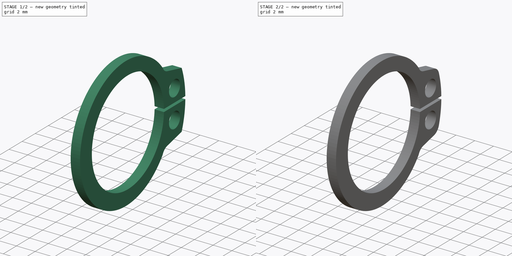
[diagram: build sequence overview — one tinted view per stage of 2, left to right]
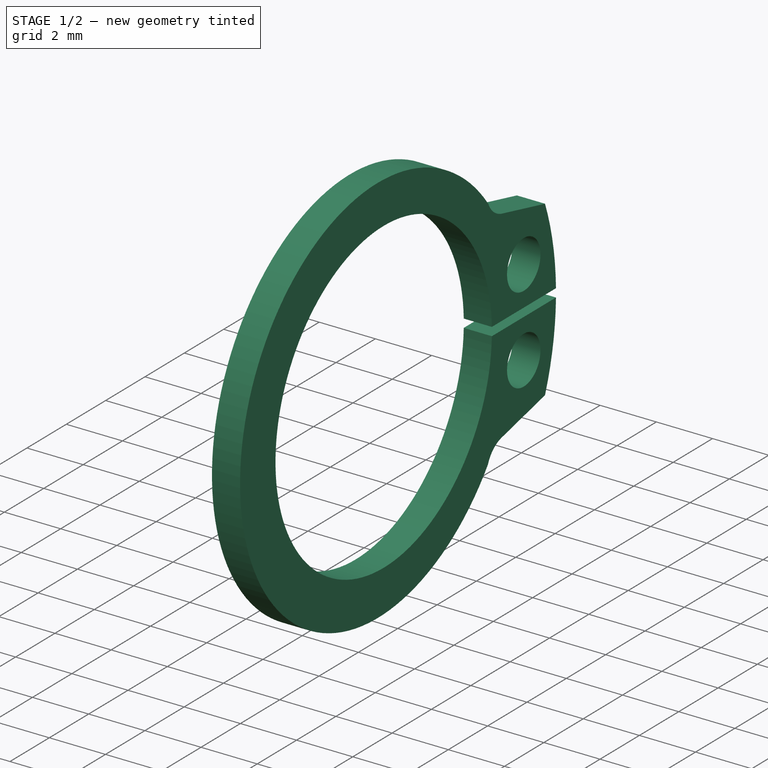
[diagram: stage 1 of 2 — iso view after this stage's code; geometry added in this stage tinted green]
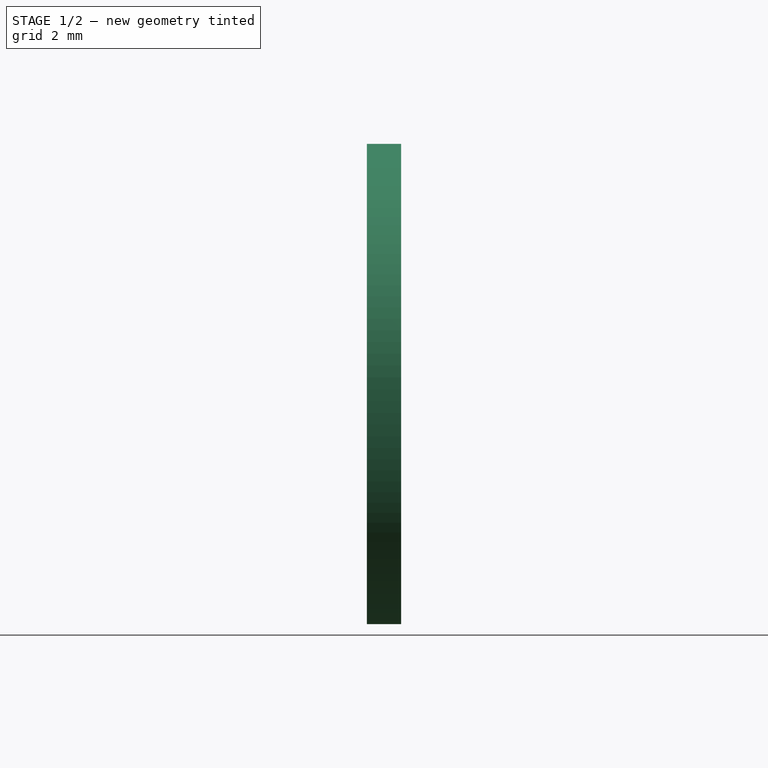
[diagram: stage 1 of 2 — front view after this stage's code; geometry added in this stage tinted green]
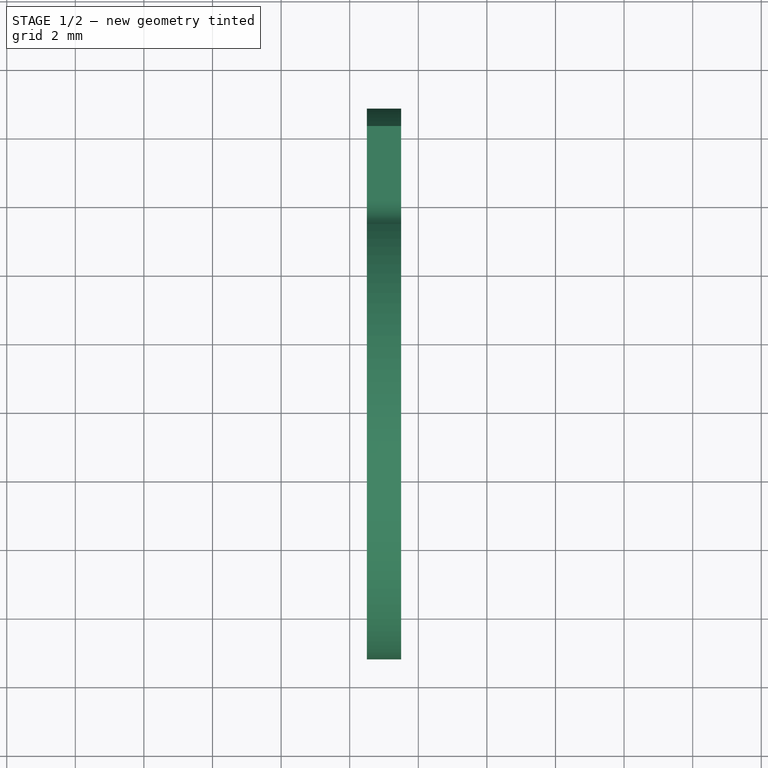
[diagram: stage 1 of 2 — top view after this stage's code; geometry added in this stage tinted green]
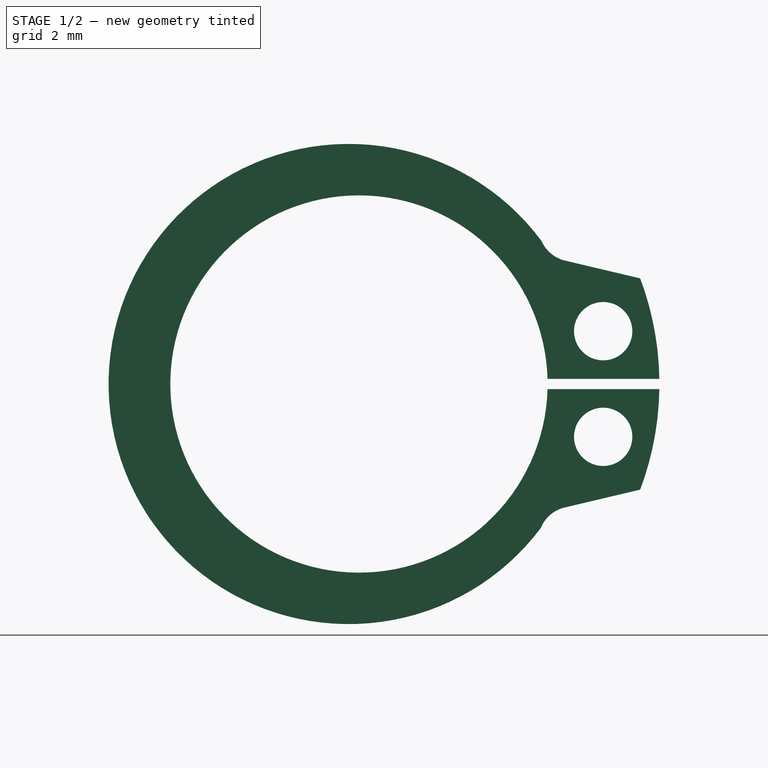
[diagram: stage 1 of 2 — right view after this stage's code; geometry added in this stage tinted green]
FCSTD DOCUMENT  (FreeCAD 0.15R4671 (Git))
Label: DIN471_CLASS_A_M12RetainingRings
License: CreativeCommons Attribution-ShareAlike
LicenseURL: http://creativecommons.org/licenses/by-sa/4.0/
objects: Sketcher::SketchObject×1, PartDesign::Pad×1, PartDesign::Fillet×1
note: 4 computed .brp shape members not serialized (recipe doc carries the construction recipe); baked Part::Feature solids carry a one-line shape summary decoded from their .brp

FEATURE [Sketcher::SketchObject] Sketch
  Placement = pos=(0.5,0,0) rot=(0.57735,0.57735,0.57735;2.0944rad)
  sketch-geometry (12):
    g0: ArcOfCircle CenterX=0 CenterY=0 CenterZ=0 NormalX=0 NormalY=0 NormalZ=1 Radius=5.5 StartAngle=0.0272761 EndAngle=6.25591
    g1: ArcOfCircle CenterX=0 CenterY=0 CenterZ=0 NormalX=0 NormalY=0 NormalZ=1 Radius=8.75924 StartAngle=0.0171256 EndAngle=0.359268
    g2: ArcOfCircle CenterX=0 CenterY=0 CenterZ=0 NormalX=0 NormalY=0 NormalZ=1 Radius=8.75924 StartAngle=5.92392 EndAngle=6.26606
    g3: Circle CenterX=7.12 CenterY=1.54 CenterZ=0 NormalX=0 NormalY=0 NormalZ=1 Radius=0.85
    g4: Circle CenterX=7.12 CenterY=-1.54 CenterZ=0 NormalX=0 NormalY=0 NormalZ=1 Radius=0.85
    g5: ArcOfCircle CenterX=-0.3 CenterY=0 CenterZ=0 NormalX=0 NormalY=0 NormalZ=1 Radius=7 StartAngle=0.638155 EndAngle=5.63968
    g6: LineSegment StartX=5.49795 StartY=-0.15 StartZ=0 EndX=8.75795 EndY=-0.15 EndZ=0
    g7: LineSegment StartX=5.49795 StartY=0.15 StartZ=0 EndX=8.75795 EndY=0.15 EndZ=0
    g8: LineSegment StartX=6 StartY=-3.6 StartZ=0 EndX=8.2 EndY=-3.07965 EndZ=0
    g9: LineSegment StartX=6 StartY=3.6 StartZ=0 EndX=8.2 EndY=3.07965 EndZ=0
    g10: ArcOfCircle CenterX=6.23838 CenterY=4.57117 CenterZ=0 NormalX=0 NormalY=0 NormalZ=1 Radius=1 StartAngle=3.55439 EndAngle=4.47169
    g11: ArcOfCircle CenterX=6.22752 CenterY=-4.57377 CenterZ=0 NormalX=0 NormalY=0 NormalZ=1 Radius=1 StartAngle=1.80033 EndAngle=2.75852
  constraints (38):
    c: Coincident(g0,g-1)
    c: Coincident(g1,g-1)
    c: Coincident(g2,g-1)
    c: PointOnObject(g5,g-1)
    c: Coincident(g6,g0)
    c: Coincident(g6,g2)
    c: Horizontal(g6)
    c: Coincident(g7,g0)
    c: Coincident(g7,g1)
    c: Horizontal(g7)
    c: Coincident(g1,g9)
    c: Coincident(g8,g2)
    c: Radius(g0) = 5.5
    c: Radius(g3) = 0.85
    c: Equal(g3,g4)
    c: Symmetric(g3,g4,g-1)
    c: DistanceX(g-1,g3) = 7.12
    c: DistanceY(g-1,g3) = 1.54
    c: Radius(g5) = 7
    c: Equal(g7,g6)
    c: DistanceY(g0,g0) = -0.3
    c: DistanceX(g6) = 3.26
    c: Equal(g1,g2)
    c: DistanceX(g8) = 2.2
    c: Equal(g8,g9)
    c: Coincident(g10,g5)
    c: Coincident(g10,g9)
    c: Radius(g10) = 1
    c: Coincident(g11,g5)
    c: Coincident(g11,g8)
    c: Radius(g11) = 1
    c: DistanceY(g5,g5) = 8.37
    c: DistanceX(g-1,g5) = -0.3
    c: DistanceX(g-1,g9) = 6
    c: DistanceX(g-1,g8) = 6
    c: DistanceY(g-1,g8) = -3.6
    c: Symmetric(g9,g8,g-1)
    c: DistanceX(g-1,g5) = 5.3
FEATURE [PartDesign::Pad] Pad
  Length = 1
  Length2 = 100
  Placement = pos=(0.5,0,0) rot=(0.57735,0.57735,0.57735;2.0944rad)
  Sketch = -> Sketch
  Type = 0
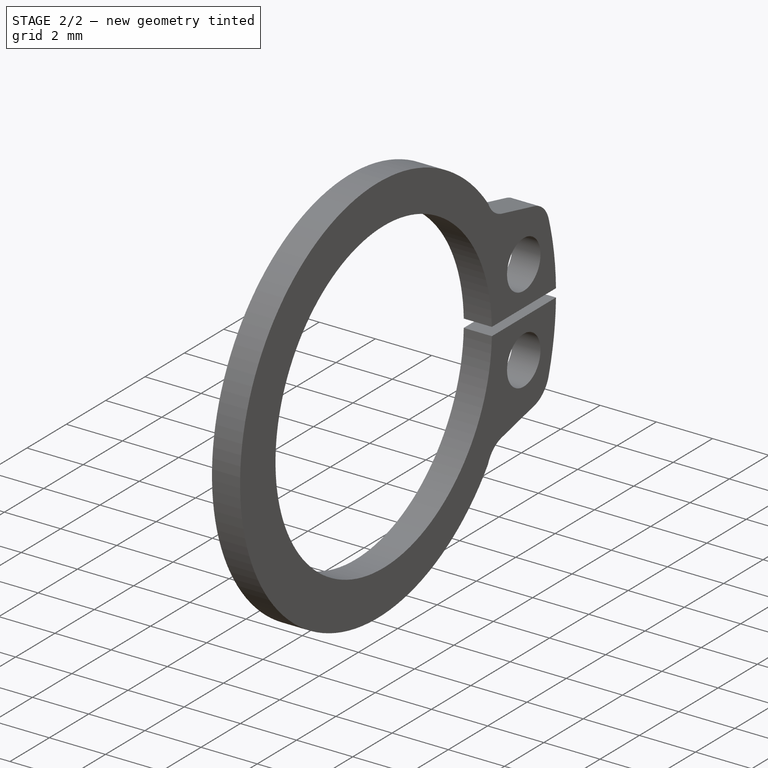
[diagram: stage 2 of 2 — iso view after this stage's code; geometry added in this stage tinted green]
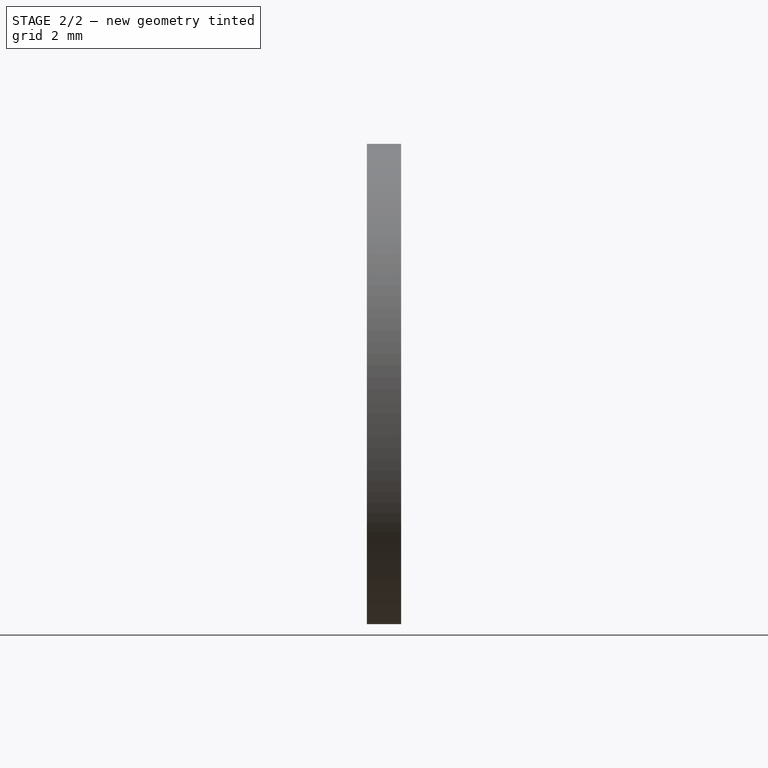
[diagram: stage 2 of 2 — front view after this stage's code; geometry added in this stage tinted green]
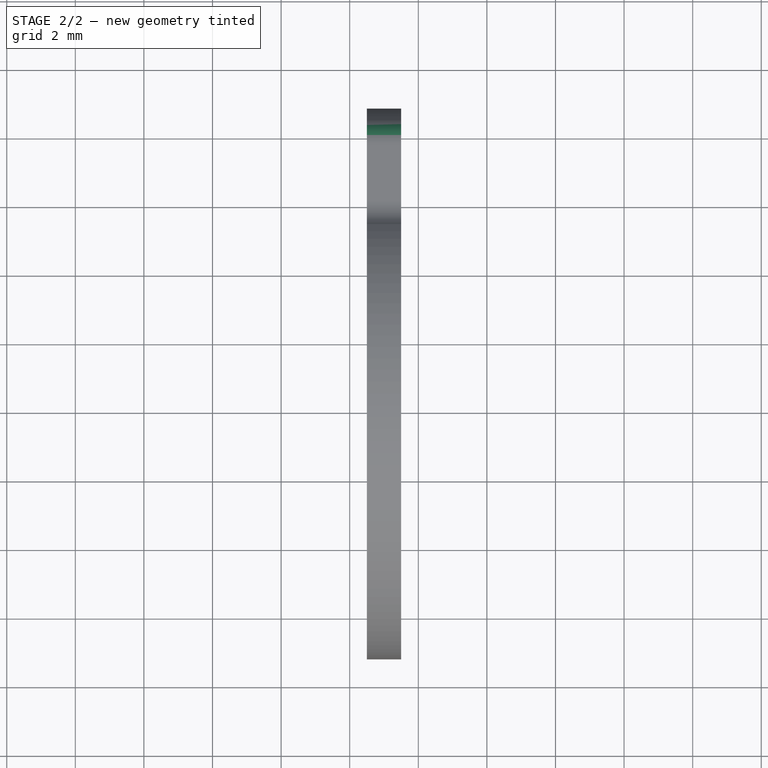
[diagram: stage 2 of 2 — top view after this stage's code; geometry added in this stage tinted green]
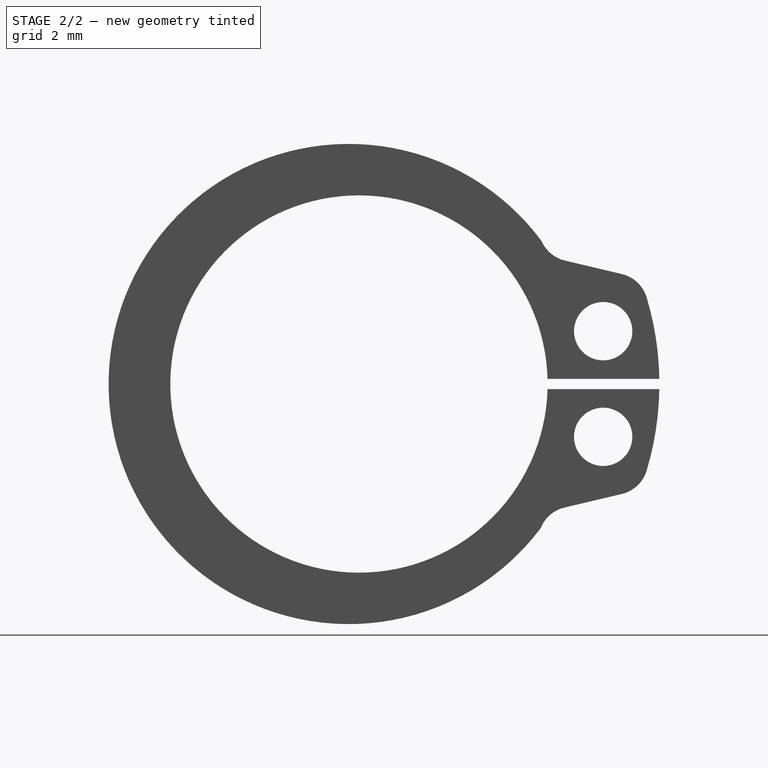
[diagram: stage 2 of 2 — right view after this stage's code; geometry added in this stage tinted green]
FEATURE [PartDesign::Fillet] Fillet
  Base = -> Pad [Edge23,Edge8]
  Placement = pos=(0.5,0,0) rot=(0.57735,0.57735,0.57735;2.0944rad)
  Radius = 1
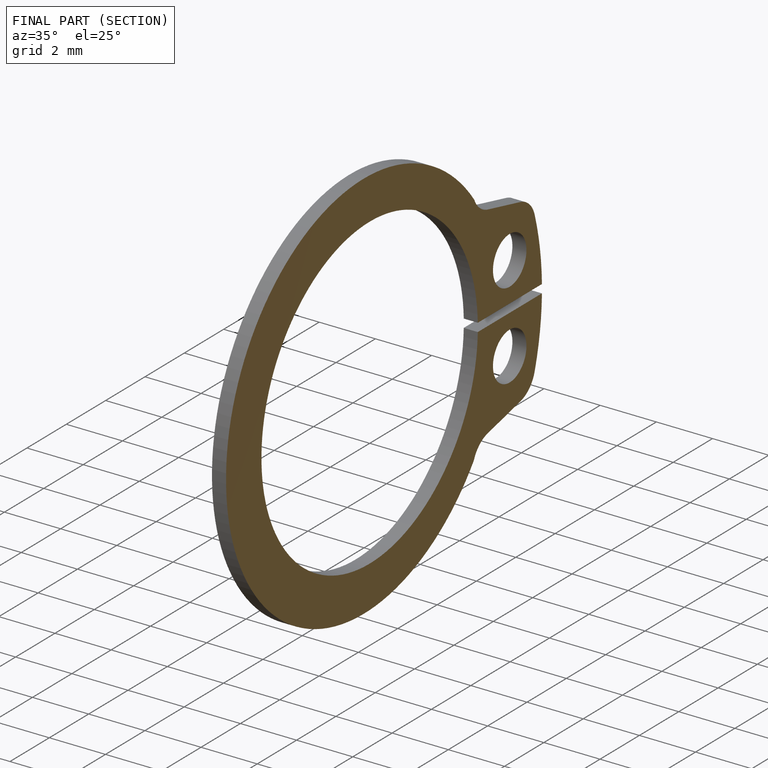
[diagram: finished part — half-section view (interior)]
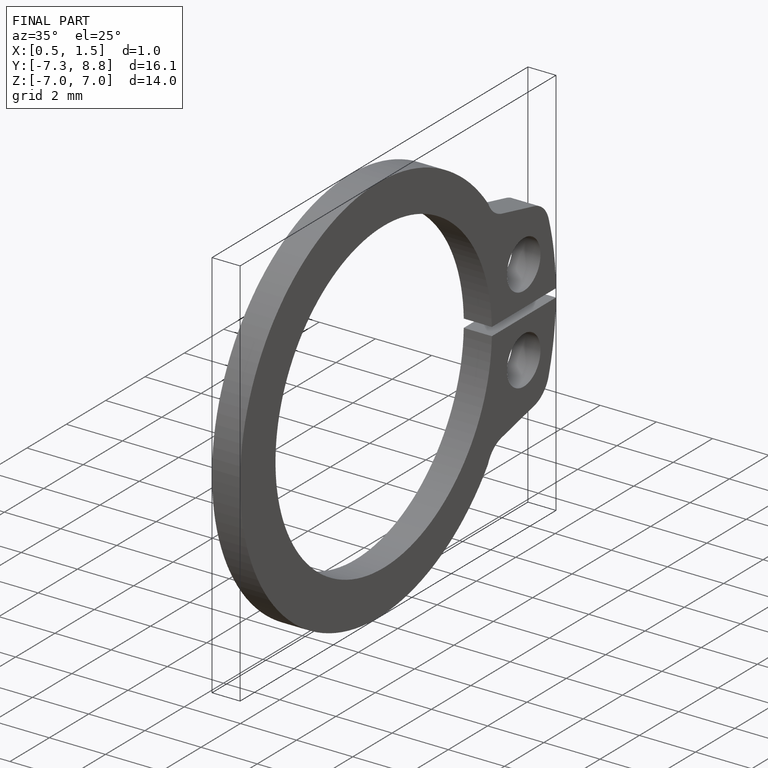
[diagram: finished part — iso view with bounding-box wireframe]
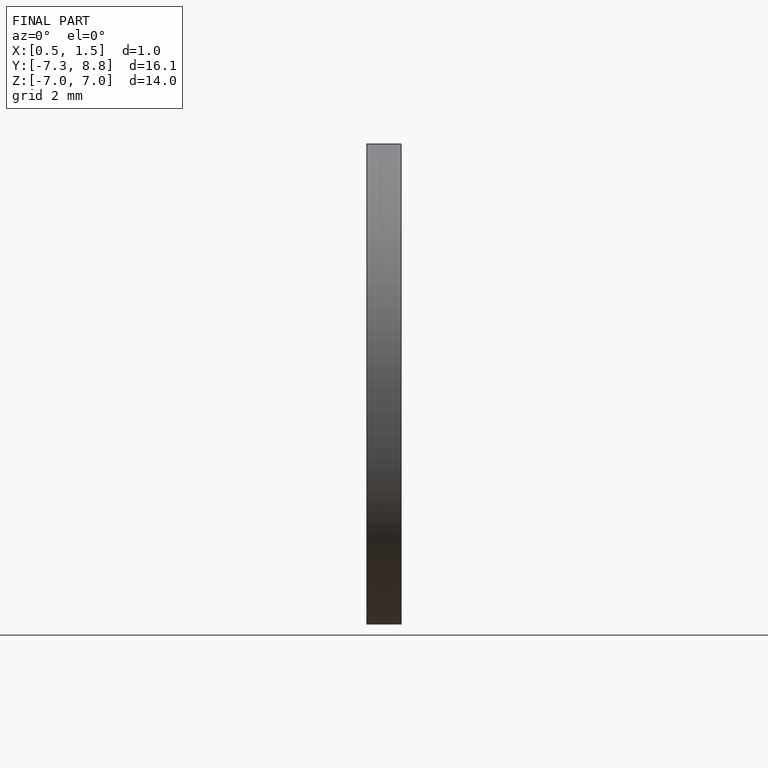
[diagram: finished part — front view with bounding-box wireframe]
